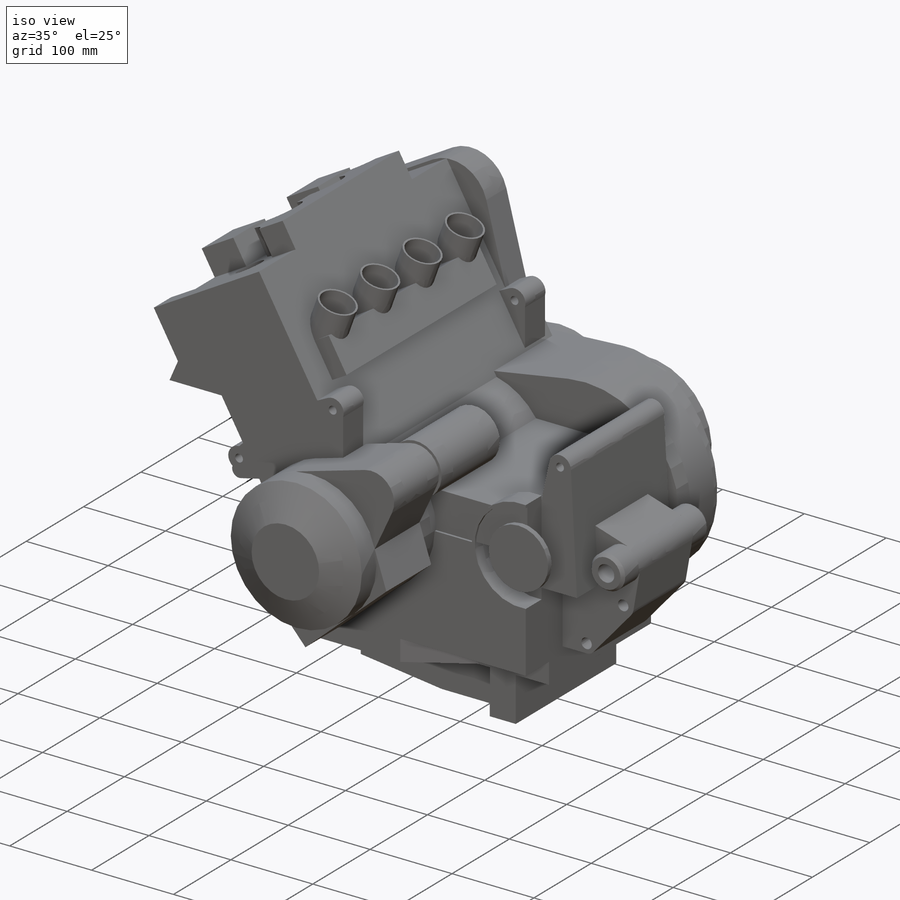
[diagram: iso view]
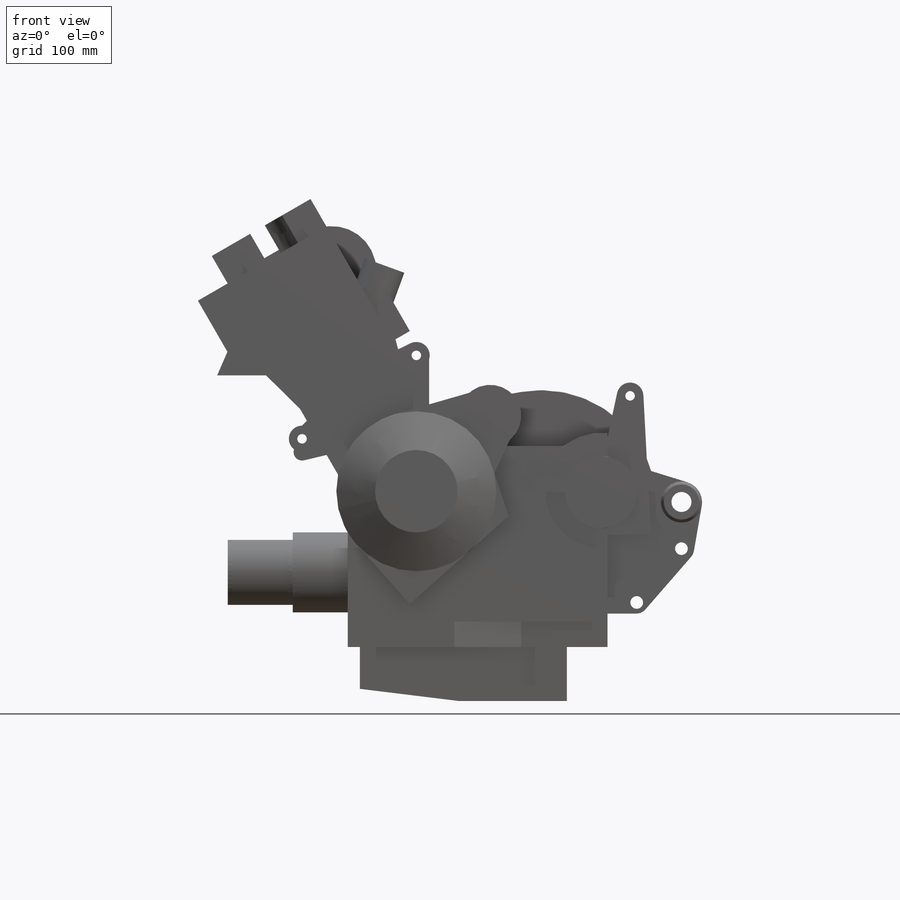
[diagram: front view]
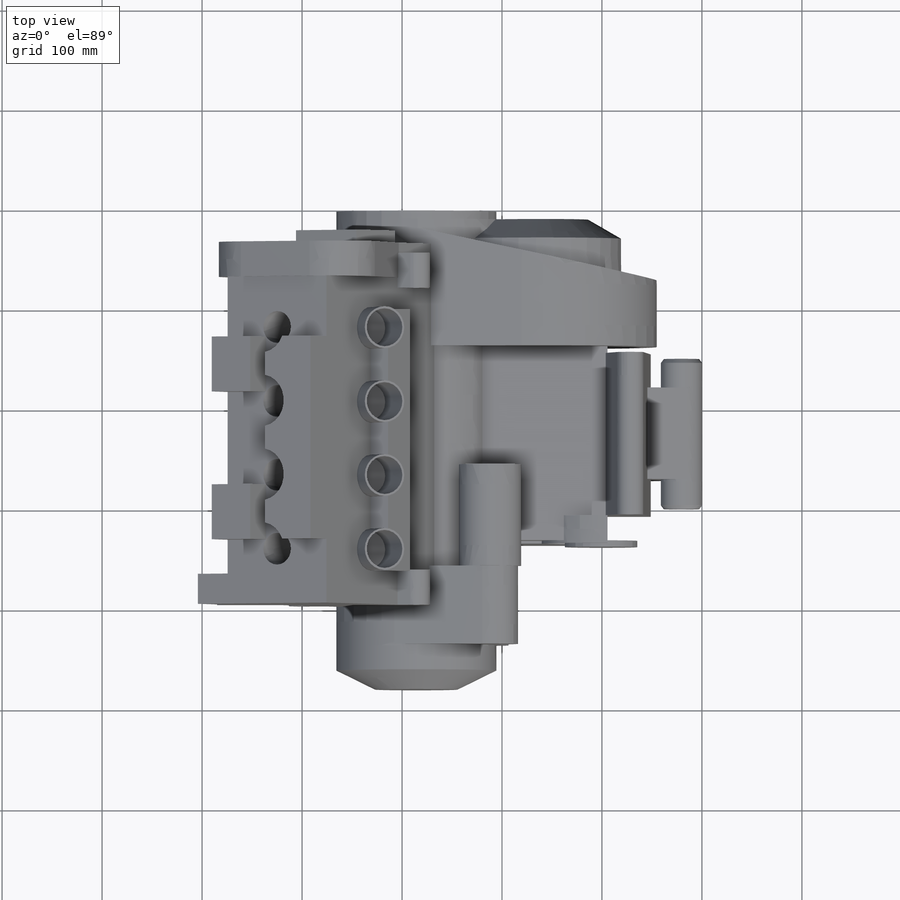
[diagram: top view]
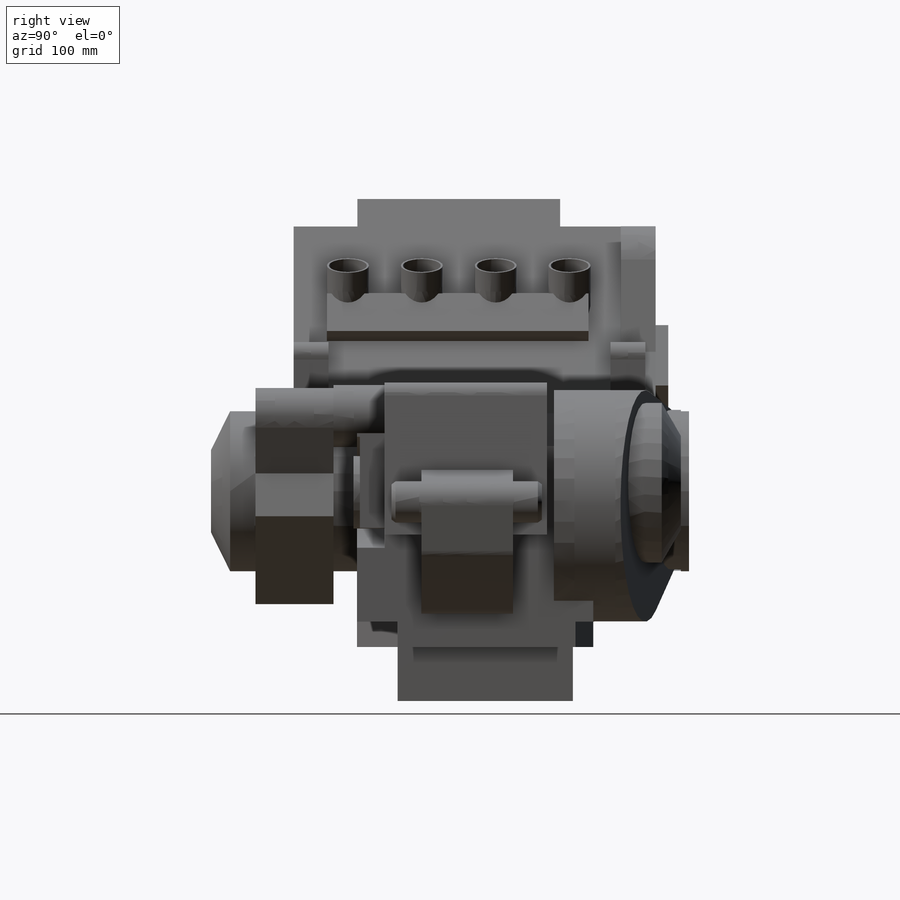
[diagram: right view]
SOLIDWORKS PART (.sldprt)
format: sldprt  version: not decoded by parser v0  size: 1,655,296 bytes
history: native  units: mm
features: sketch x54, extrude x33, plane x31, cut_extrude x11, chamfer x3, material x1 (+16 scaffold rows collapsed; 1 parser-record rows omitted)
feature tree (150):
  scaffold x16  (default folders/planes/origin — collapsed)
  material  "6061 Alloy"
  parser-record x1  (decoder bookkeeping rows leaked as tree rows — omitted from the tree; the rows remain in map.json)
  plane  "Plane1"
  sketch  "Sketch1"
  extrude  "Extrude1"  Depth=362.11764mm
  plane  "Plane2"
  sketch  "Sketch2"
  extrude  "Extrude2"  Depth=351.92716mm
  plane  "Plane3"
  sketch  "S2D0005"
  extrude  "Extrude3"  Depth=361.95mm
  plane  "Plane4"
  sketch  "Sketch4"
  extrude  "Extrude4"  Depth=130.175mm
  plane  "Plane5"
  sketch  "Sketch5"  dims[D1=274.32mm D2=75.0mm D3=7.5mm]
  extrude  "Extrude5"  [1 undecoded]
  plane  "Plane6"
  plane  "Plane7"
  sketch  "Sketch7"
  extrude  "Extrude7"  Depth=101.6mm
  sketch  "Sketch8"
  extrude  "Extrude8"  Depth=25.4mm
  sketch  "Sketch9"  dims[D1=25.4mm D2=31.75mm]
  extrude  "Extrude9"  Depth=53.975mm
  plane  "Plane8"
  sketch  "Sketch10"
  extrude  "Extrude10"  Depth=82.55mm
  sketch  "Sketch11"
  extrude  "Extrude11"  Depth=101.6mm
  plane  "Plane9"
  sketch  "Sketch12"
  plane  "Plane10"
  extrude  "Extrude12"  Depth=0mm
  plane  "Plane11"
  sketch  "Sketch13"
  plane  "Plane12"
  extrude  "Extrude13"  [1 undecoded]
  plane  "Plane13"
  sketch  "Sketch14"
  plane  "Plane14"
  extrude  "Extrude14"  Depth=0mm
  plane  "Plane15"
  sketch  "Sketch15"
  plane  "Plane16"
  extrude  "Extrude15"  Depth=0mm
  plane  "Plane17"
  sketch  "Sketch16"
  plane  "Plane18"
  extrude  "Extrude16"  [1 undecoded]
  sketch  "Sketch17"  dims[D1=152.4mm]
  extrude  "Extrude17"  Depth=0mm
  plane  "Plane19"
  sketch  "Sketch18"
  extrude  "Extrude18"  Depth=3.175mm
  sketch  "Sketch19"
  cut_extrude  "Cut-Extrude1"  Depth=31.115mm
  sketch  "Sketch20"
  cut_extrude  "Cut-Extrude2"  [1 undecoded]
  sketch  "Sketch21"
  extrude  "Extrude19"  Depth=33.528mm
  plane  "Plane20"
  plane  "Plane21"
  plane  "Plane22"
  sketch  "Sketch23"
  extrude  "Extrude21"  Depth=12.7mm
  sketch  "Sketch24"
  plane  "Plane23"
  sketch  "Sketch25"  dims[D1=37.846mm D2=~5.475748mm]
  sketch  "Sketch26"
  sketch  "Sketch27"
  extrude  "Extrude25"  [1 undecoded]
  sketch  "Sketch28"  dims[D1=3.5mm]
  extrude  "Extrude26"  [1 undecoded]
  sketch  "Sketch29"  dims[D1=80.0mm]
  extrude  "Extrude27"  Depth=55mm
  sketch  "Sketch30"  dims[D1=65.0mm]
  extrude  "Extrude28"  Depth=65mm
  sketch  "Sketch31"  dims[c1.D1=~111.930777mm c2.D1=7.0deg]
  sketch  "Sketch33"  dims[c1.D2=44.45mm c1.D1=76.2mm c2.D2=20.0mm c2.D3=120.0mm c2.D4=6.0mm c2.D5=20.0mm c2.D6=120.0mm c2.D7=165.0mm c2.D8=~1.492603mm c3.D2=~12.875348mm c3.D3=~17.904551mm]
  sketch  "Sketch34"  dims[c1.D1=70.0mm c1.D2=~12.684599mm c2.D1=~25.922354mm c2.D2=~25.922354mm c3.D1=53.975mm c3.D2=63.5mm c3.D3=63.5mm c4.D1=63.5mm c4.D4=63.5mm c4.D5=38.1mm]
  sketch  "Sketch35"  dims[D1=30.0mm D2=30.0mm]
  sketch  "Sketch36"
  cut_extrude  "Cut-Extrude9"  [1 undecoded]
  extrude  "Extrude33"  Depth=80mm
  extrude  "Extrude34"  [1 undecoded]
  extrude  "Extrude43"  Depth=34.925mm
  sketch  "Sketch37"  dims[c1.D1=34.925mm c1.D2=~42.819966mm c2.D2=90.0deg c3.D2=34.925mm]
  cut_extrude  "Cut-Extrude11"  [1 undecoded]
  sketch  "Sketch38"  dims[c1.D2=31.75mm c1.D1=55.0mm c2.D2=10.0mm]
  extrude  "Extrude36"  Depth=31.75mm
  cut_extrude  "Cut-Extrude12"  Depth=80mm
  sketch  "Sketch39"
  extrude  "Extrude37"  [1 undecoded]
  extrude  "Extrude39"  [1 undecoded]
  cut_extrude  "Cut-Extrude13"  [1 undecoded]
  extrude  "Extrude40"  [1 undecoded]
  plane  "Plane24"  Offset=100mm
  sketch  "Sketch41"
  sketch  "Sketch42"
  sketch  "Sketch45"
  extrude  "Extrude42"  Depth=4mm
  sketch  "Sketch44"
  extrude  "Extrude41"  Depth=4mm
  plane  "Plane25"  Offset=25.4mm
  sketch  "Sketch46"
  cut_extrude  "Cut-Extrude14"  [1 undecoded]
  plane  "Plane26"  Offset=60.325mm
  sketch  "Sketch47"
  sketch  "Sketch48"
  plane  "Plane27"
  sketch  "Sketch49"  dims[c1.D1=160.0mm c1.D3=60.0mm c1.D4=231.4702mm c1.D2=12.5mm c2.D4=~10.022578mm]
  cut_extrude  "Cut-Extrude16"  [1 undecoded]
  sketch  "Sketch50"
  plane  "Plane28"  Offset=44.45mm
  cut_extrude  "Cut-Extrude17"  [1 undecoded]
  sketch  "Sketch51"
  cut_extrude  "Cut-Extrude18"  [1 undecoded]
  chamfer  "Chamfer2"  Distance=4mm
  sketch  "Sketch53"  dims[D1=~10.907761mm]
  extrude  "Extrude44"  Depth=20mm
  sketch  "Sketch54"
  cut_extrude  "Cut-Extrude19"  Depth=50mm
  chamfer  "Chamfer1"  Distance=19.05mm
  chamfer  "Chamfer3"  Distance=33mm
  sketch  "Sketch55"
  sketch  "Sketch56"
  sketch  "Sketch57"
  sketch  "3DSketch1"  dims[c1.D1=~362.11764mm c1.D2=~362.11764mm c2.D1=~362.11764mm c2.D2=~362.11764mm]
  plane  "Plane29"
  sketch  "3DSketch2"
  sketch  "Sketch58"  dims[c1.D1=254.0mm c1.D2=254.0mm c2.D2=10.0deg c3.D2=107.95mm c4.D2=0.0deg]
  plane  "Plane30"
  plane  "Plane31"  Offset=38.1mm
decode coverage: 47 of 101 modeling features carry decoded parameters
note: ~ marks probable driven/reference dimensions
note: 17 parameter values undecoded
summary: no parameter record found for 17 features
note: suppression state not decoded; provenance and decode notes live in map.json
